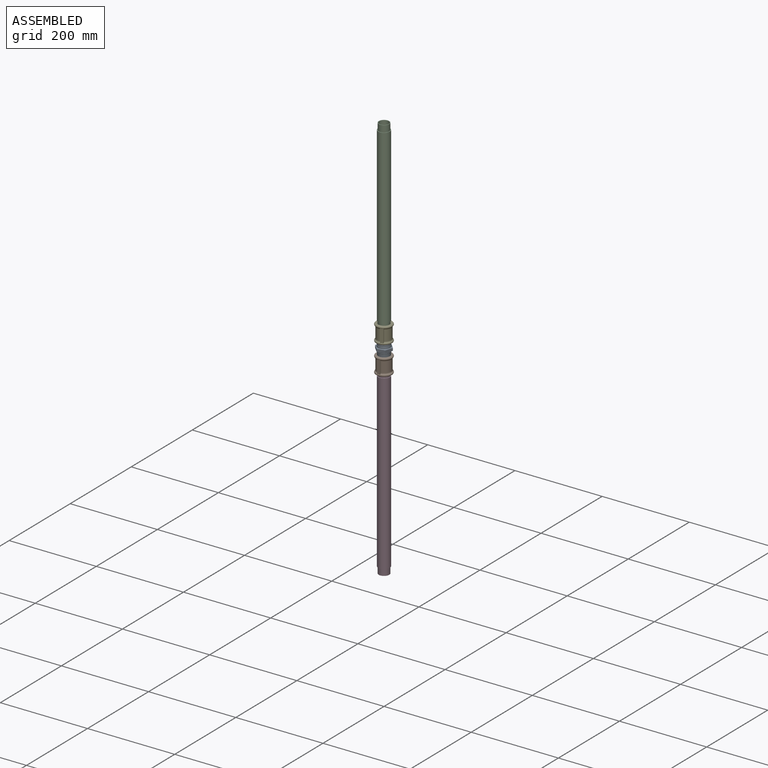
[diagram: assembled view]
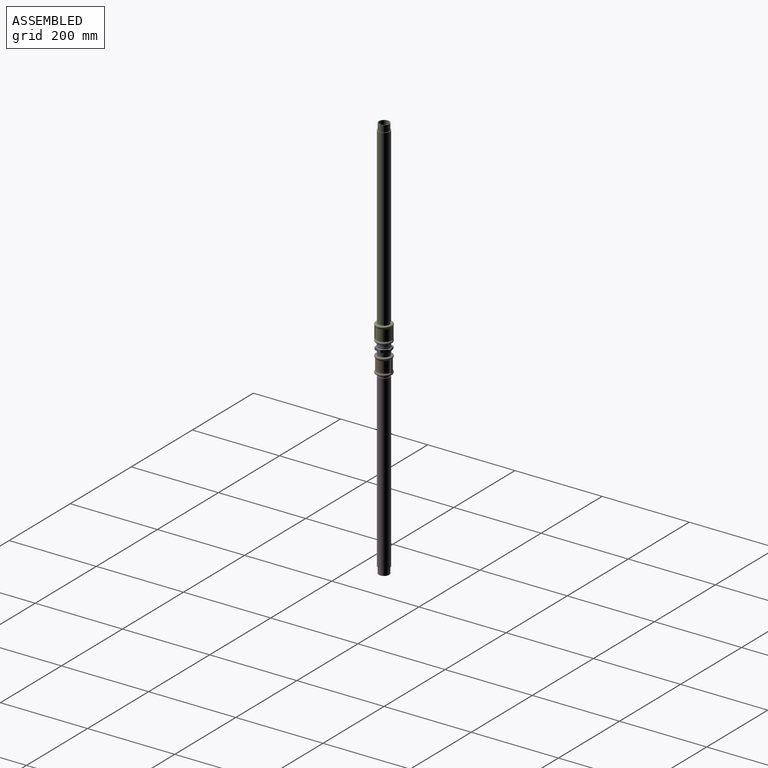
[diagram: assembled view, second angle]
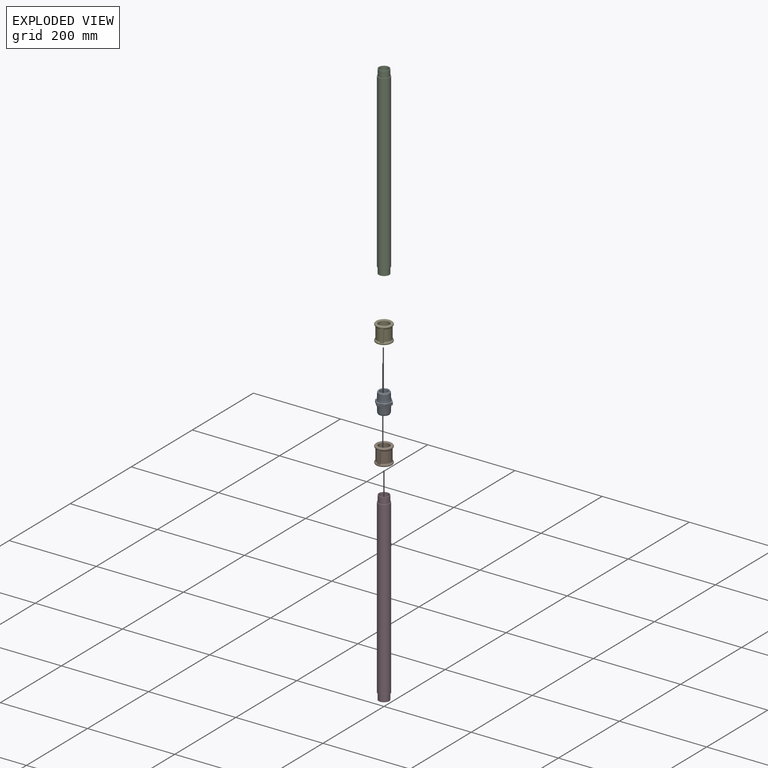
[diagram: exploded view]
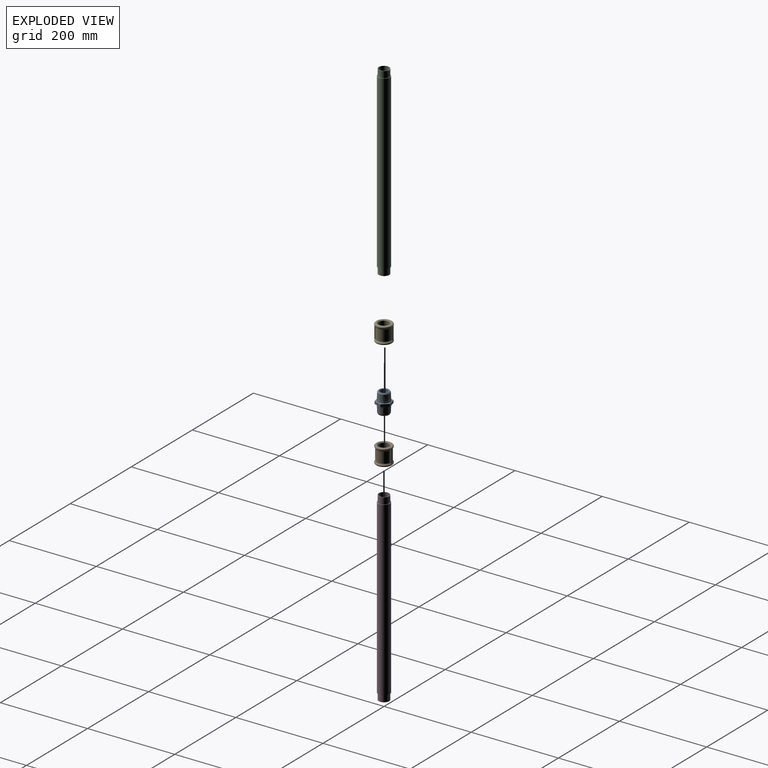
[diagram: exploded view, second angle]
ASSEMBLY  parts=5 mates=8
PART A: 68 faces, bbox 36.2x35.6x47 mm
  f0: cone r=13.45mm half-angle=1.8deg, axis (0,0,-1), area 197.2mm2, adj f1,f10
  f1: torus R=15.39mm, axis (0,0,1), area 209.7mm2, adj f0,f67
  f2: torus R=15.39mm, axis (0,0,1), area 209.7mm2, adj f3,f66
  f3: cone r=13.72mm half-angle=1.8deg, axis (0,0,1), area 197.2mm2, adj f2,f8
  f4: cone r=8.74mm half-angle=2.5deg, axis (0,0,-1), area 1235.8mm2, adj f5,f6
  f5: torus R=10.21mm, axis (0,0,1), area 91.9mm2, adj f4,f59
  f6: cone r=8.74mm half-angle=2.5deg, axis (0,0,1), area 1235.8mm2, adj f4,f7
  f7: torus R=10.21mm, axis (0,0,-1), area 91.9mm2, adj f6,f58
  f8: cone r=14.53mm half-angle=39deg, axis (0,0,1), area 53.2mm2, adj f3,f9
  f9: cone r=13.18mm half-angle=1.8deg, axis (0,0,1), area 1137.9mm2, adj f8,f12
  f10: cone r=14.53mm half-angle=39deg, axis (0,0,-1), area 53.2mm2, adj f0,f11
  f11: cone r=13.18mm half-angle=1.8deg, axis (0,0,-1), area 1137.9mm2, adj f10,f13
  f12: cone r=14.5mm half-angle=30deg, axis (0,0,1), area 231.8mm2, adj f9,f59
  f13: cone r=14mm half-angle=30deg, axis (0,0,-1), area 231.8mm2, adj f11,f58
  f14: cylinder r=1.09mm len=2.29mm, axis (0.87,-0.5,-0.03), area 5.8mm2, adj f30,f31,f33,f63
  f15: cylinder r=1.8mm len=3.63mm, axis (0.87,-0.5,-0.03), area 10.5mm2, adj f29,f30,f33,f63
  f16: plane 0.99x0.9mm, normal (-0.5,-0.87,0), area 1mm2, adj f17,f27,f28,f63
  f17: plane 1.34x1.33mm, normal (0.03,-0.02,1), area 1mm2, adj f16,f18,f28,f63
  f18: plane 0.89x0.66mm, normal (-0.5,-0.87,0), area 0.6mm2, adj f17,f19,f28,f63
  f19: plane 1.34x1.33mm, normal (-0.03,0.02,-1), area 1mm2, adj f18,f20,f28,f63
  f20: plane 0.99x0.9mm, normal (-0.5,-0.87,0), area 1mm2, adj f19,f21,f28,f63
  f21: plane 1.18x1.04mm, normal (-0.03,0.02,-1), area 0.6mm2, adj f20,f22,f28,f63
  f22: plane 0.99x0.9mm, normal (0.5,0.87,0), area 1mm2, adj f21,f23,f28,f63
  f23: plane 1.34x1.33mm, normal (-0.03,0.02,-1), area 1mm2, adj f22,f24,f28,f63
  f24: plane 0.89x0.66mm, normal (0.5,0.87,0), area 0.6mm2, adj f23,f25,f28,f63
  f25: plane 1.34x1.33mm, normal (0.03,-0.02,1), area 1mm2, adj f24,f26,f28,f63
  f26: plane 0.99x0.9mm, normal (0.5,0.87,0), area 1mm2, adj f25,f27,f28,f63
  f27: plane 1.18x1.04mm, normal (0.03,-0.02,1), area 0.6mm2, adj f16,f26,f28,f63
  f28: plane 2.54x2.22mm, normal (-0.87,0.5,0.03), area 2.8mm2, adj f16,f17,f18,f19,f20,f21,f22,f23
  f29: plane 2.05x1.76mm, normal (-0.03,0.02,-1), area 1.8mm2, adj f15,f32,f33,f63
  f30: plane 1.16x1.03mm, normal (0.27,0.42,0.87), area 0.7mm2, adj f14,f15,f33,f63
  f31: plane 1.35x1.35mm, normal (0.03,-0.02,1), area 1mm2, adj f14,f32,f33,f63
  f32: plane 0.89x0.69mm, normal (-0.5,-0.87,0), area 0.7mm2, adj f29,f31,f33,f63
  f33: plane 3.6x3.13mm, normal (-0.87,0.5,0.03), area 6.7mm2, adj f14,f15,f29,f30,f31,f32
  f34: plane 1.47x0.91mm, normal (0.5,0.87,0), area 1.4mm2, adj f35,f43,f44,f63
  f35: plane 1.26x1.17mm, normal (0.03,-0.02,1), area 0.8mm2, adj f34,f36,f44,f63
  f36: plane 3.48x0.97mm, normal (-0.5,-0.87,0), area 3.4mm2, adj f35,f37,f44,f63
  f37: plane 2.27x1.88mm, normal (-0.03,0.02,-1), area 2mm2, adj f36,f38,f44,f63
  f38: plane 0.89x0.69mm, normal (0.5,0.87,0), area 0.7mm2, adj f37,f39,f44,f63
  f39: plane 1.59x1.49mm, normal (0.03,-0.02,1), area 1.3mm2, adj f38,f40,f44,f63
  f40: plane 0.89x0.72mm, normal (0.5,0.87,0), area 0.7mm2, adj f39,f41,f44,f63
  f41: plane 1.59x1.49mm, normal (-0.03,0.02,-1), area 1.3mm2, adj f40,f42,f44,f63
  f42: plane 0.89x0.69mm, normal (0.5,0.87,0), area 0.7mm2, adj f41,f43,f44,f63
  f43: plane 1.59x1.49mm, normal (0.03,-0.02,1), area 1.3mm2, adj f34,f42,f44,f63
  f44: plane 3.44x1.83mm, normal (-0.87,0.5,0.03), area 4.3mm2, adj f34,f35,f36,f37,f38,f39,f40,f41
  f45: plane 0.89x0.66mm, normal (-0.5,-0.87,0), area 0.6mm2, adj f46,f56,f57,f63
  f46: plane 1.34x1.33mm, normal (-0.03,0.02,-1), area 1mm2, adj f45,f47,f57,f63
  f47: plane 0.99x0.9mm, normal (-0.5,-0.87,0), area 1mm2, adj f46,f48,f57,f63
  f48: plane 1.18x1.04mm, normal (-0.03,0.02,-1), area 0.6mm2, adj f47,f49,f57,f63
  f49: plane 0.99x0.9mm, normal (0.5,0.87,0), area 1mm2, adj f48,f50,f57,f63
  f50: plane 1.34x1.33mm, normal (-0.03,0.02,-1), area 1mm2, adj f49,f51,f57,f63
  f51: plane 0.89x0.66mm, normal (0.5,0.87,0), area 0.6mm2, adj f50,f52,f57,f63
  f52: plane 1.34x1.33mm, normal (0.03,-0.02,1), area 1mm2, adj f51,f53,f57,f63
  f53: plane 0.99x0.9mm, normal (0.5,0.87,0), area 1mm2, adj f52,f54,f57,f63
  f54: plane 1.18x1.04mm, normal (0.03,-0.02,1), area 0.6mm2, adj f53,f55,f57,f63
  f55: plane 0.99x0.9mm, normal (-0.5,-0.87,0), area 1mm2, adj f54,f56,f57,f63
  f56: plane 1.34x1.33mm, normal (0.03,-0.02,1), area 1mm2, adj f45,f55,f57,f63
  f57: plane 2.54x2.22mm, normal (-0.87,0.5,0.03), area 2.8mm2, adj f45,f46,f47,f48,f49,f50,f51,f52
  f58: plane 23x23mm, normal (0,0,1), area 88.2mm2, adj f7,f13
  f59: plane 23x23mm, normal (0,0,-1), area 88.2mm2, adj f5,f12
  f60: plane 15.73x9.12mm, normal (0.87,-0.5,0.03), area 108.1mm2, adj f61,f65,f66,f67
  f61: plane 15.69x9.18mm, normal (0.87,0.5,0.03), area 108.1mm2, adj f60,f62,f66,f67
  f62: plane 18.12x6mm, normal (0,1,0.03), area 108.1mm2, adj f61,f63,f66,f67
  f63: plane 15.73x9.12mm, normal (-0.87,0.5,0.03), area 91.4mm2, adj f14,f15,f16,f17,f18,f19,f20,f21
  f64: plane 15.69x9.18mm, normal (-0.87,-0.5,0.03), area 108.1mm2, adj f63,f65,f66,f67
  f65: plane 18.12x6mm, normal (0,-1,0.03), area 108.1mm2, adj f60,f64,f66,f67
  f66: plane 36.18x31.42mm, normal (0,0,-1), area 108.7mm2, adj f2,f60,f61,f62,f63,f64,f65
  f67: plane 35.7x31mm, normal (0,0,1), area 86.1mm2, adj f1,f60,f61,f62,f63,f64,f65
PART B: 66 faces, bbox 41.9x41.1x39 mm
  f0: torus R=16.1mm, axis (0,0,1), area 678.4mm2, adj f2,f5,f6,f58,f59,f60,f62,f63
  f1: torus R=16.1mm, axis (0,0,1), area 678.4mm2, adj f3,f4,f7,f58,f59,f60,f62,f63
  f2: cone r=13.33mm half-angle=85deg, axis (0,0,1), area 247.8mm2, adj f0,f9
  f3: cone r=13.73mm half-angle=85deg, axis (0,0,-1), area 242.2mm2, adj f1,f11
  f4: torus R=19.3mm, axis (0,0,1), area 129.5mm2, adj f1,f60,f61,f62
  f5: torus R=19.3mm, axis (0,0,1), area 129.5mm2, adj f0,f60,f61,f62
  f6: torus R=19.3mm, axis (0,0,1), area 129.5mm2, adj f0,f58,f59,f64
  f7: torus R=19.3mm, axis (0,0,1), area 129.5mm2, adj f1,f58,f59,f64
  f8: cylinder r=12.06mm len=24.12mm, axis (0,0,-1), area 989.9mm2, adj f9,f57
  f9: cone r=13.03mm half-angle=45deg, axis (0,0,-1), area 187.9mm2, adj f2,f8
  f10: cylinder r=12.06mm len=24.12mm, axis (0,0,1), area 989.9mm2, adj f11,f56
  f11: cone r=13.03mm half-angle=45deg, axis (0,0,1), area 195.7mm2, adj f3,f10
  f12: cylinder r=1.09mm len=2.18mm, axis (1,0,0), area 5.8mm2, adj f28,f29,f31,f61
  f13: cylinder r=1.8mm len=3.6mm, axis (1,0,0), area 10.1mm2, adj f27,f28,f31,f61
  f14: plane 0.99x0.96mm, normal (0,0,1), area 0.9mm2, adj f15,f25,f26,f61
  f15: plane 0.99x0.96mm, normal (0,1,0), area 1mm2, adj f14,f16,f26,f61
  f16: plane 1x0.62mm, normal (0,0,1), area 0.6mm2, adj f15,f17,f26,f61
  f17: plane 1x0.96mm, normal (0,-1,0), area 1mm2, adj f16,f18,f26,f61
  f18: plane 1x0.96mm, normal (0,0,1), area 0.9mm2, adj f17,f19,f26,f61
  f19: plane 0.96x0.62mm, normal (0,-1,0), area 0.6mm2, adj f18,f20,f26,f61
  f20: plane 1x0.96mm, normal (0,0,-1), area 0.9mm2, adj f19,f21,f26,f61
  f21: plane 1x0.96mm, normal (0,-1,0), area 1mm2, adj f20,f22,f26,f61
  f22: plane 1x0.62mm, normal (0,0,-1), area 0.6mm2, adj f21,f23,f26,f61
  f23: plane 0.99x0.96mm, normal (0,1,0), area 1mm2, adj f22,f24,f26,f61
  f24: plane 0.99x0.96mm, normal (0,0,-1), area 0.9mm2, adj f23,f25,f26,f61
  f25: plane 0.94x0.62mm, normal (0,1,0), area 0.6mm2, adj f14,f24,f26,f61
  f26: plane 2.54x2.54mm, normal (-1,0,0), area 2.8mm2, adj f14,f15,f16,f17,f18,f19,f20,f21
  f27: plane 1.79x1mm, normal (0,-1,0), area 1.8mm2, adj f13,f30,f31,f61
  f28: plane 1x0.61mm, normal (0,0.87,-0.5), area 0.7mm2, adj f12,f13,f31,f61
  f29: plane 0.99x0.98mm, normal (0,1,0), area 1mm2, adj f12,f30,f31,f61
  f30: plane 1x0.66mm, normal (0,0,1), area 0.7mm2, adj f27,f29,f31,f61
  f31: plane 3.6x3.6mm, normal (-1,0,0), area 6.7mm2, adj f12,f13,f27,f28,f29,f30
  f32: plane 1.44x0.99mm, normal (0,0,-1), area 1.4mm2, adj f33,f41,f42,f61
  f33: plane 0.89x0.78mm, normal (0,1,0), area 0.7mm2, adj f32,f34,f42,f61
  f34: plane 3.44x1mm, normal (0,0,1), area 3.3mm2, adj f33,f35,f42,f61
  f35: plane 2.04x0.93mm, normal (0,-1,0), area 1.9mm2, adj f34,f36,f42,f61
  f36: plane 0.98x0.66mm, normal (0,0,-1), area 0.6mm2, adj f35,f37,f42,f61
  f37: plane 1.26x0.98mm, normal (0,1,0), area 1.2mm2, adj f36,f38,f42,f61
  f38: plane 1x0.68mm, normal (0,0,-1), area 0.7mm2, adj f37,f39,f42,f61
  f39: plane 1.26x1mm, normal (0,-1,0), area 1.3mm2, adj f38,f40,f42,f61
  f40: plane 1x0.66mm, normal (0,0,-1), area 0.7mm2, adj f39,f41,f42,f61
  f41: plane 1.26x0.99mm, normal (0,1,0), area 1.3mm2, adj f32,f40,f42,f61
  f42: plane 3.44x2.04mm, normal (-1,0,0), area 4.3mm2, adj f32,f33,f34,f35,f36,f37,f38,f39
  f43: plane 1x0.62mm, normal (0,0,1), area 0.6mm2, adj f44,f54,f55,f61
  f44: plane 1x0.96mm, normal (0,-1,0), area 1mm2, adj f43,f45,f55,f61
  f45: plane 1x0.96mm, normal (0,0,1), area 0.9mm2, adj f44,f46,f55,f61
  f46: plane 0.96x0.62mm, normal (0,-1,0), area 0.6mm2, adj f45,f47,f55,f61
  f47: plane 1x0.96mm, normal (0,0,-1), area 0.9mm2, adj f46,f48,f55,f61
  f48: plane 1x0.96mm, normal (0,-1,0), area 1mm2, adj f47,f49,f55,f61
  f49: plane 1x0.62mm, normal (0,0,-1), area 0.6mm2, adj f48,f50,f55,f61
  f50: plane 0.99x0.96mm, normal (0,1,0), area 1mm2, adj f49,f51,f55,f61
  f51: plane 0.99x0.96mm, normal (0,0,-1), area 0.9mm2, adj f50,f52,f55,f61
  f52: plane 0.94x0.62mm, normal (0,1,0), area 0.6mm2, adj f51,f53,f55,f61
  f53: plane 0.99x0.96mm, normal (0,0,1), area 0.9mm2, adj f52,f54,f55,f61
  f54: plane 0.99x0.96mm, normal (0,1,0), area 1mm2, adj f43,f53,f55,f61
  f55: plane 2.54x2.54mm, normal (-1,0,0), area 2.8mm2, adj f43,f44,f45,f46,f47,f48,f49,f50
  f56: plane 24.12x24.12mm, normal (0,0,1), area 456.8mm2, adj f10
  f57: plane 24.12x24.12mm, normal (0,0,-1), area 456.8mm2, adj f8
  f58: plane 30.87x2.11mm, normal (1,-0.05,0), area 56.1mm2, adj f0,f1,f6,f7,f63,f64
  f59: plane 30.87x2.11mm, normal (1,0.05,0), area 56.1mm2, adj f0,f1,f6,f7,f64,f65
  f60: plane 30.87x2.11mm, normal (-1,0.05,0), area 56.1mm2, adj f0,f1,f4,f5,f61,f65
  f61: cylinder r=16.3mm len=31.79mm, axis (0,0,-1), area 1059.8mm2, adj f4,f5,f12,f13,f14,f15,f16,f17
  f62: plane 30.87x2.11mm, normal (-1,-0.05,0), area 56.1mm2, adj f0,f1,f4,f5,f61,f63
  f63: plane 30.72x7mm, normal (0,-1,0), area 211.3mm2, adj f0,f1,f58,f62
  f64: cylinder r=16.3mm len=31.79mm, axis (0,0,-1), area 1076.5mm2, adj f6,f7,f58,f59
  f65: plane 30.72x7mm, normal (0,1,0), area 211mm2, adj f0,f1,f59,f60
PART C: 8 faces, bbox 26.9x26.9x425 mm
  f0: cylinder r=10.85mm len=425mm, axis (0,0,-1), area 28973.3mm2, adj f6,f7
  f1: cylinder r=12.06mm len=24.12mm, axis (0,0,-1), area 1136.5mm2, adj f5,f6
  f2: cylinder r=13.45mm len=395mm, axis (0,0,-1), area 33381mm2, adj f4,f5
  f3: cylinder r=12.06mm len=24.12mm, axis (0,0,-1), area 1136.5mm2, adj f4,f7
  f4: plane 26.9x26.9mm, normal (0,0,-1), area 111.5mm2, adj f2,f3
  f5: plane 26.9x26.9mm, normal (0,0,1), area 111.5mm2, adj f1,f2
  f6: plane 24.12x24.12mm, normal (0,0,1), area 87mm2, adj f0,f1
  f7: plane 24.12x24.12mm, normal (0,0,-1), area 87mm2, adj f0,f3
PART D: same geometry as C
PART E: same geometry as B
PLACE A rot(axis=(0.92,-0.4,0),180deg) t=(0,0,490.65)mm
PLACE B rot(axis=(1,0,0),180deg) t=(0,0,439.06)mm
PLACE C rot(axis=(0.83,-0.56,0),180deg) t=(0,0,934.3)mm
PLACE D rot(axis=(0.71,-0.71,0),180deg) t=(0,0,425)mm fixed
PLACE E rot(axis=(0.98,0.19,0),180deg) t=(0,0,504.71)mm
MATE cylindrical A.f0 <-> E.f0  axis (0,0,-1) through (0,0,481.2)mm
MATE planar D.f0 <-> B.f0  axis (0,0,1) through (0,0,425)mm
MATE cylindrical A.f0 <-> B.f0  axis (0,0,1) through (0,0,453.11)mm
MATE planar E.f0 <-> C.f0  axis (0,0,-1) through (0,0,519.3)mm
MATE cylindrical C.f0 <-> E.f0  axis (0,0,1) through (0,0,516.8)mm
MATE planar B.f0 <-> A.f0  axis (0,0,-1) through (0,0,453.65)mm
MATE planar A.f0 <-> E.f0  axis (0,0,1) through (0,0,490.65)mm
MATE cylindrical D.f0 <-> B.f0  axis (0,0,1) through (0,0,417.5)mm
